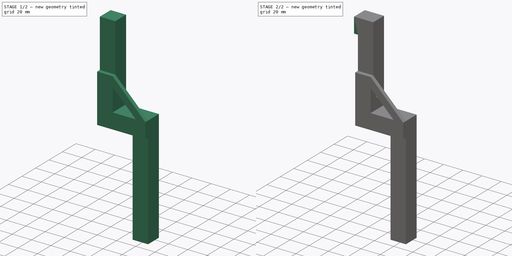
[diagram: build sequence overview — one tinted view per stage of 2, left to right]
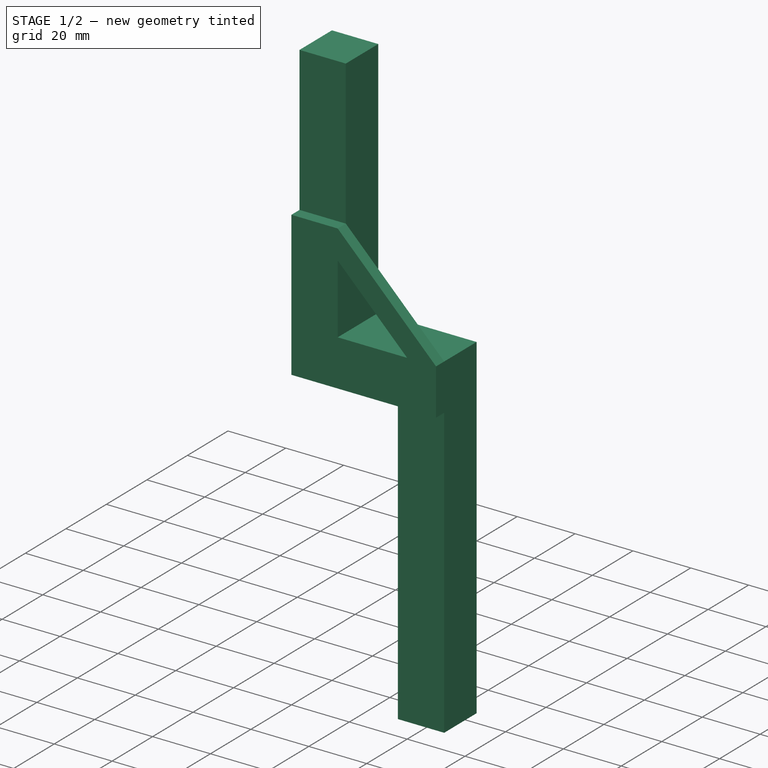
[diagram: stage 1 of 2 — iso view after this stage's code; geometry added in this stage tinted green]
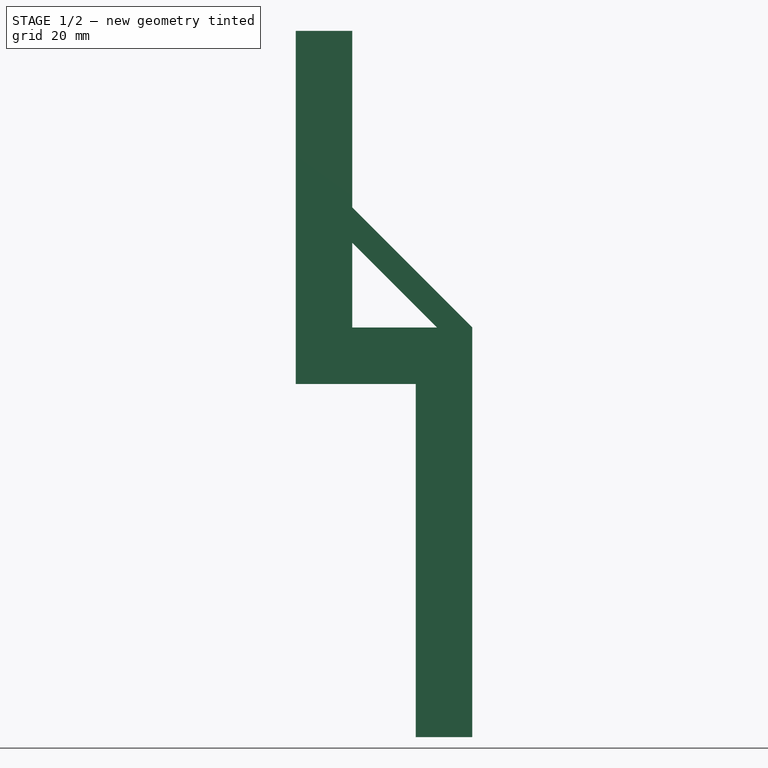
[diagram: stage 1 of 2 — front view after this stage's code; geometry added in this stage tinted green]
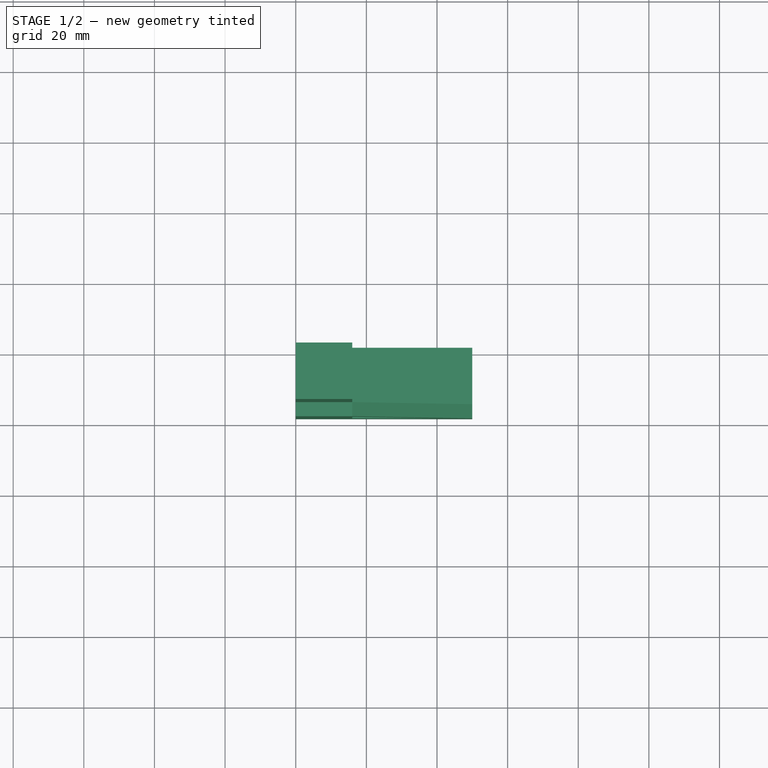
[diagram: stage 1 of 2 — top view after this stage's code; geometry added in this stage tinted green]
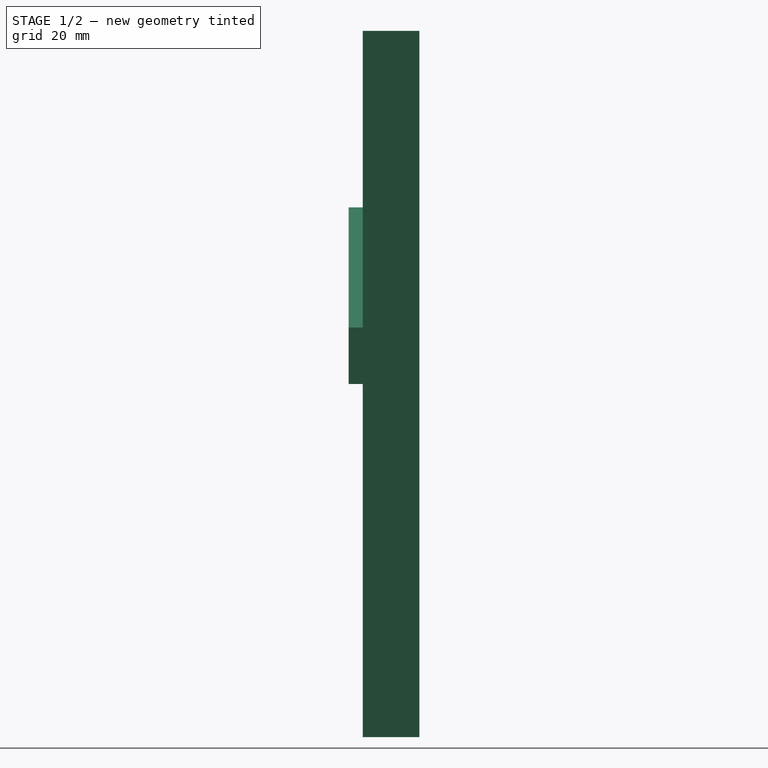
[diagram: stage 1 of 2 — right view after this stage's code; geometry added in this stage tinted green]
FCSTD DOCUMENT  (FreeCAD 1.0R39285 (Git))
Label: Supporting-Clamp
License: All rights reserved
objects: Sketcher::SketchObject×4, PartDesign::Pad×3, PartDesign::Pocket×1, PartDesign::Body×1
note: 21 computed .brp shape members not serialized (recipe doc carries the construction recipe); baked Part::Feature solids carry a one-line shape summary decoded from their .brp

FEATURE [Sketcher::SketchObject] Sketch
  ArcFitTolerance = 1e-06
  AttachmentSupport = -> [XZ_Plane]
  FullyConstrained = true
  MakeInternals = false
  MapMode = 5
  Placement = pos=(0,0,0) rot=(1,0,0;1.5708rad)
  sketch-geometry (8):
    g0: LineSegment StartX=0 StartY=0 StartZ=0 EndX=0 EndY=100 EndZ=0
    g1: LineSegment StartX=0 StartY=100 StartZ=0 EndX=16 EndY=100 EndZ=0
    g2: LineSegment StartX=16 StartY=100 StartZ=0 EndX=16 EndY=16 EndZ=0
    g3: LineSegment StartX=16 StartY=16 StartZ=0 EndX=50 EndY=16 EndZ=0
    g4: LineSegment StartX=50 StartY=16 StartZ=0 EndX=50 EndY=-100 EndZ=0
    g5: LineSegment StartX=50 StartY=-100 StartZ=0 EndX=34 EndY=-100 EndZ=0
    g6: LineSegment StartX=34 StartY=-100 StartZ=0 EndX=34 EndY=0 EndZ=0
    g7: LineSegment StartX=34 StartY=0 StartZ=0 EndX=0 EndY=0 EndZ=0
  constraints (23):
    c: Distance(g0) = 100
    c: Coincident(g0,g-1)
    c: PointOnObject(g0,g-2)
    c: Distance(g1) = 16
    c: Coincident(g1,g0)
    c: Horizontal(g1)
    c: Distance(g2) = 84
    c: Coincident(g2,g1)
    c: Vertical(g2)
    c: Distance(g3) = 34
    c: Coincident(g3,g2)
    c: Horizontal(g3)
    c: Distance(g4) = 116
    c: Coincident(g4,g3)
    c: Vertical(g4)
    c: Distance(g5) = 16
    c: Coincident(g5,g4)
    c: Horizontal(g5)
    c: Coincident(g6,g5)
    c: PointOnObject(g6,g-1)
    c: Vertical(g6)
    c: Coincident(g7,g6)
    c: Coincident(g7,g0)
FEATURE [PartDesign::Pad] Pad
  Direction = (0,-1,2e-16)
  Length = 16
  Length2 = 10
  Placement = pos=(0,0,0) rot=(1,0,0;1.5708rad)
  Profile = -> Sketch
  ReferenceAxis = -> Sketch [N_Axis]
  Refine = true
  Suppressed = false
  Type = 0
FEATURE [Sketcher::SketchObject] Sketch001
  ArcFitTolerance = 1e-06
  AttachmentSupport = -> [Pad]
  FullyConstrained = true
  MakeInternals = false
  MapMode = 5
  Placement = pos=(0,-16,3.6e-15) rot=(1,0,0;1.5708rad)
  sketch-geometry (9):
    g0: LineSegment StartX=0 StartY=0 StartZ=0 EndX=50 EndY=0 EndZ=0
    g1: LineSegment StartX=50 StartY=0 StartZ=0 EndX=50 EndY=16 EndZ=0
    g2: LineSegment StartX=0 StartY=0 StartZ=0 EndX=0 EndY=50 EndZ=0
    g3: LineSegment StartX=0 StartY=50 StartZ=0 EndX=16 EndY=50 EndZ=0
    g4: LineSegment StartX=16 StartY=50 StartZ=0 EndX=50 EndY=16 EndZ=0
    g5: LineSegment [constr] StartX=16 StartY=50 StartZ=0 EndX=16 EndY=16 EndZ=0
    g6: LineSegment StartX=16 StartY=16 StartZ=0 EndX=40 EndY=16 EndZ=0
    g7: LineSegment StartX=40 StartY=16 StartZ=0 EndX=16 EndY=40 EndZ=0
    g8: LineSegment StartX=16 StartY=40 StartZ=0 EndX=16 EndY=16 EndZ=0
  constraints (25):
    c: Distance(g0) = 50
    c: Coincident(g0,g-1)
    c: PointOnObject(g0,g-1)
    c: Distance(g1) = 16
    c: Coincident(g1,g0)
    c: Vertical(g1)
    c: Distance(g2) = 50
    c: Coincident(g2,g0)
    c: PointOnObject(g2,g-2)
    c: Distance(g3) = 16
    c: Coincident(g3,g2)
    c: Horizontal(g3)
    c: Coincident(g4,g3)
    c: Coincident(g4,g1)
    c: Distance(g5) = 34
    c: Coincident(g5,g3)
    c: Vertical(g5)
    c: Distance(g6) = 24
    c: Coincident(g6,g5)
    c: Horizontal(g6)
    c: Coincident(g7,g6)
    c: Parallel(g4,g7)
    c: PointOnObject(g7,g5)
    c: Coincident(g8,g7)
    c: Coincident(g8,g5)
FEATURE [PartDesign::Pad] Pad001
  BaseFeature = -> Pad
  Direction = (0,-1,2e-16)
  Length = 4
  Length2 = 10
  Placement = pos=(0,0,0) rot=(1,0,0;1.5708rad)
  Profile = -> Sketch001
  ReferenceAxis = -> Sketch001 [N_Axis]
  Refine = true
  Suppressed = false
  Type = 0
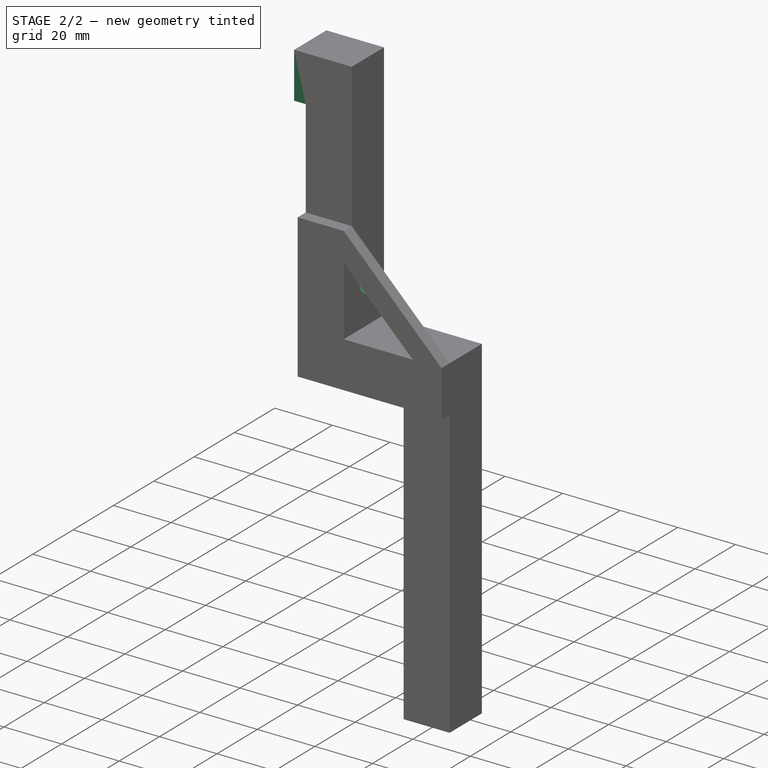
[diagram: stage 2 of 2 — iso view after this stage's code; geometry added in this stage tinted green]
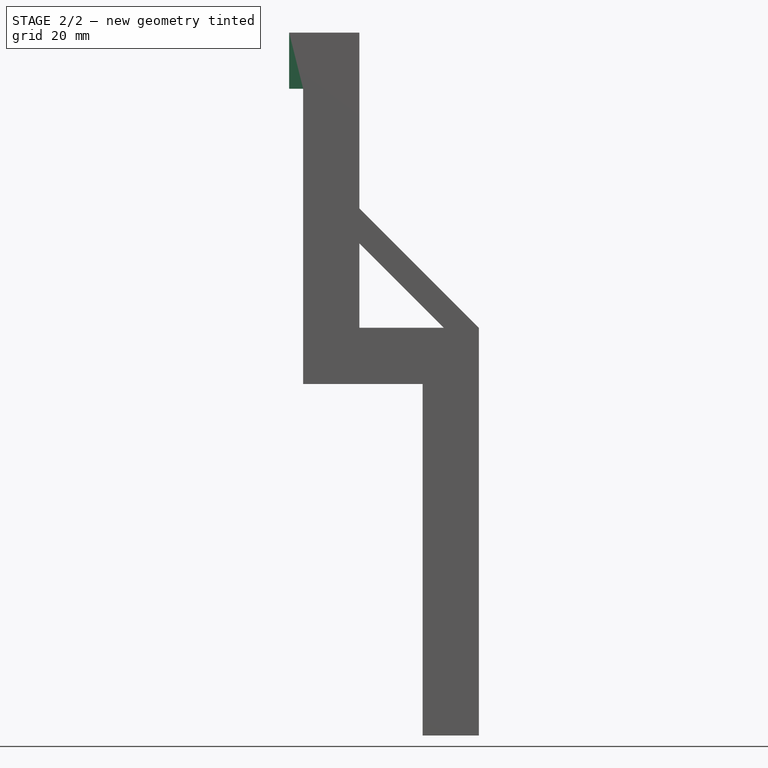
[diagram: stage 2 of 2 — front view after this stage's code; geometry added in this stage tinted green]
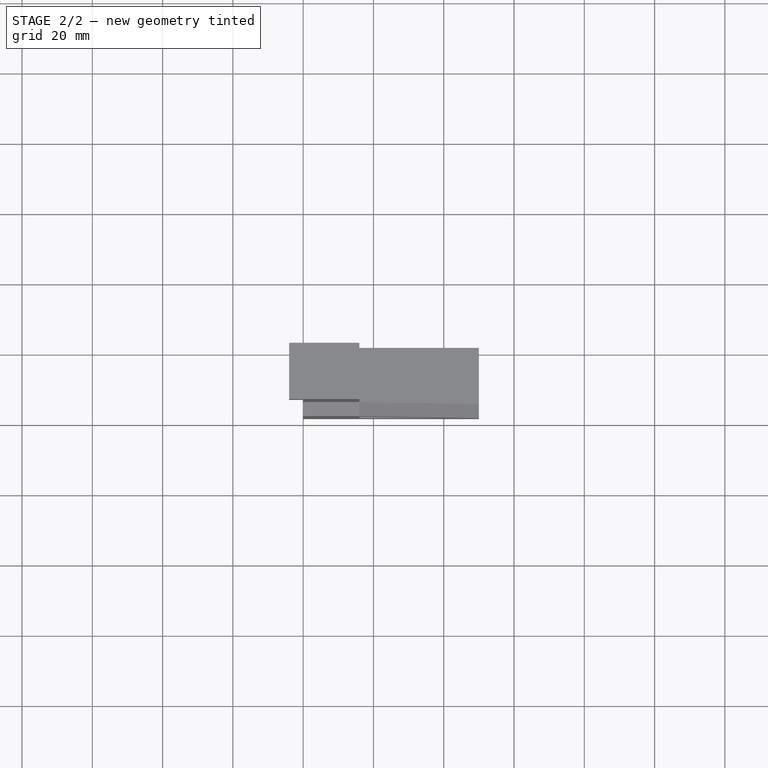
[diagram: stage 2 of 2 — top view after this stage's code; geometry added in this stage tinted green]
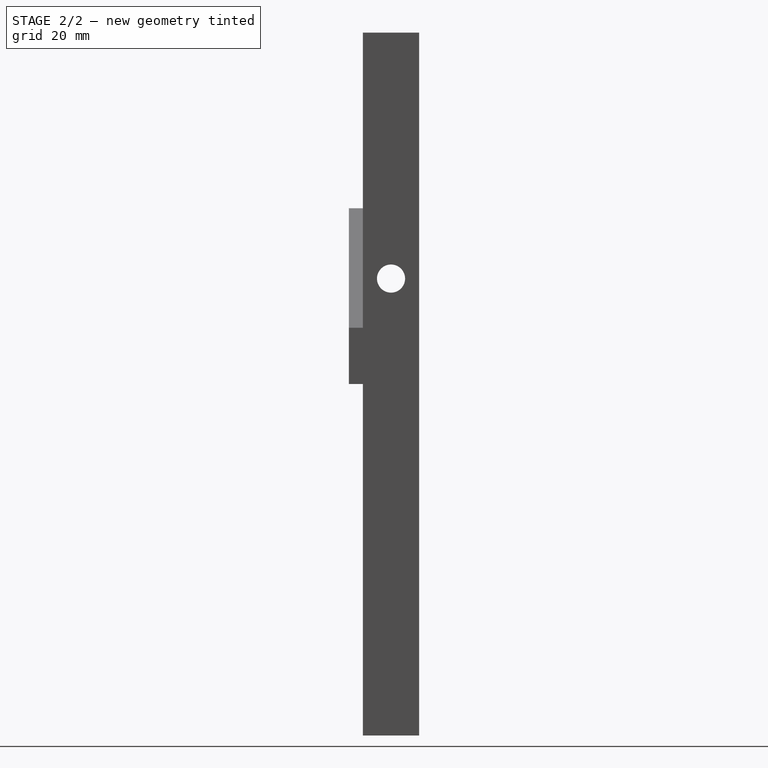
[diagram: stage 2 of 2 — right view after this stage's code; geometry added in this stage tinted green]
FEATURE [Sketcher::SketchObject] Sketch002
  ArcFitTolerance = 1e-06
  AttachmentSupport = -> [Pad001]
  FullyConstrained = true
  MakeInternals = false
  MapMode = 5
  Placement = pos=(16,0,0) rot=(0.707107,0,0.707107;3.14159rad)
  sketch-geometry (3):
    g0: LineSegment [constr] StartX=0 StartY=0 StartZ=0 EndX=0 EndY=8 EndZ=0
    g1: LineSegment [constr] StartX=0 StartY=8 StartZ=0 EndX=30 EndY=8 EndZ=0
    g2: Circle CenterX=30 CenterY=8 CenterZ=0 NormalX=0 NormalY=0 NormalZ=1 AngleXU=0 Radius=4
  constraints (8):
    c: Distance(g0) = 8
    c: Coincident(g0,g-1)
    c: PointOnObject(g0,g-2)
    c: Distance(g1) = 30
    c: Coincident(g1,g0)
    c: Horizontal(g1)
    c: Diameter(g2) = 8
    c: Coincident(g2,g1)
FEATURE [PartDesign::Pocket] Pocket
  BaseFeature = -> Pad001
  Direction = (-1,0,2e-16)
  Length = 5
  Length2 = 5
  Placement = pos=(0,0,0) rot=(1,0,0;1.5708rad)
  Profile = -> Sketch002
  ReferenceAxis = -> Sketch002 [N_Axis]
  Refine = true
  Suppressed = false
  Type = 1
FEATURE [Sketcher::SketchObject] Sketch003
  ArcFitTolerance = 1e-06
  AttachmentSupport = -> [Pocket]
  FullyConstrained = true
  MakeInternals = false
  MapMode = 5
  Placement = pos=(0,0,0) rot=(0.707107,0,-0.707107;3.14159rad)
  sketch-geometry (5):
    g0: LineSegment [constr] StartX=0 StartY=0 StartZ=0 EndX=-84 EndY=0 EndZ=0
    g1: LineSegment StartX=-84 StartY=0 StartZ=0 EndX=-84 EndY=16 EndZ=0
    g2: LineSegment StartX=-84 StartY=16 StartZ=0 EndX=-100 EndY=16 EndZ=0
    g3: LineSegment StartX=-100 StartY=16 StartZ=0 EndX=-100 EndY=0 EndZ=0
    g4: LineSegment StartX=-100 StartY=0 StartZ=0 EndX=-84 EndY=0 EndZ=0
  constraints (14):
    c: Distance(g0) = 84
    c: Coincident(g0,g-1)
    c: Horizontal(g0)
    c: Coincident(g1,g2)
    c: Coincident(g2,g3)
    c: Coincident(g3,g4)
    c: Coincident(g4,g1)
    c: Vertical(g1)
    c: Vertical(g3)
    c: Horizontal(g2)
    c: Horizontal(g4)
    c: Distance(g1,g3) = 16
    c: Distance(g2,g4) = 16
    c: Coincident(g1,g0)
FEATURE [PartDesign::Pad] Pad002
  BaseFeature = -> Pocket
  Direction = (-1,0,-2e-16)
  Length = 4
  Length2 = 10
  Placement = pos=(0,0,0) rot=(1,0,0;1.5708rad)
  Profile = -> Sketch003
  ReferenceAxis = -> Sketch003 [N_Axis]
  Refine = true
  Suppressed = false
  Type = 0
FEATURE [PartDesign::Body] Body
  AllowCompound = false
  Group = -> [Sketch,Pad,Sketch001,Pad001,Sketch002,Pocket,Sketch003,Pad002]
  Origin = -> Origin
  Tip = -> Pad002
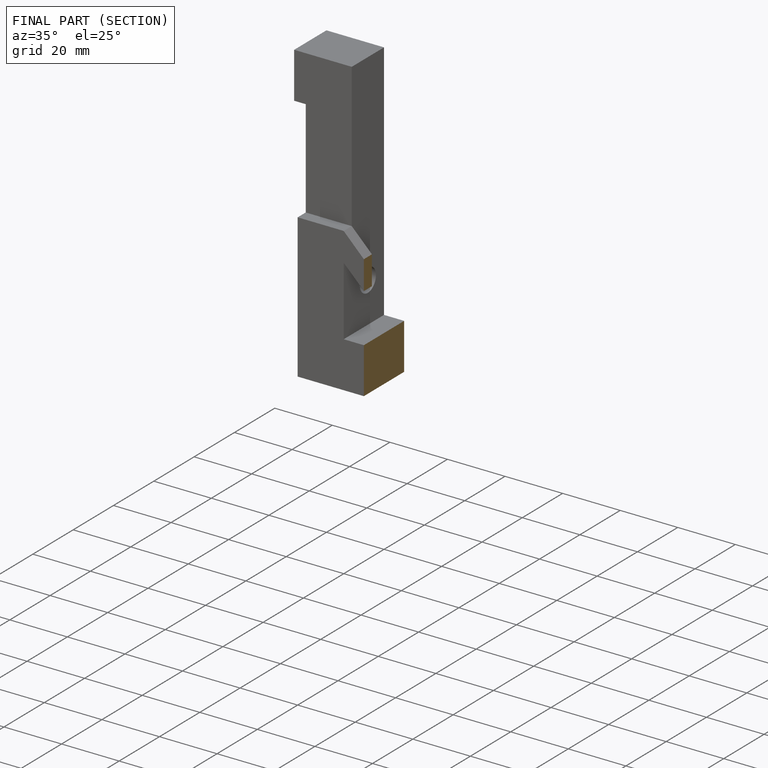
[diagram: finished part — half-section view (interior)]
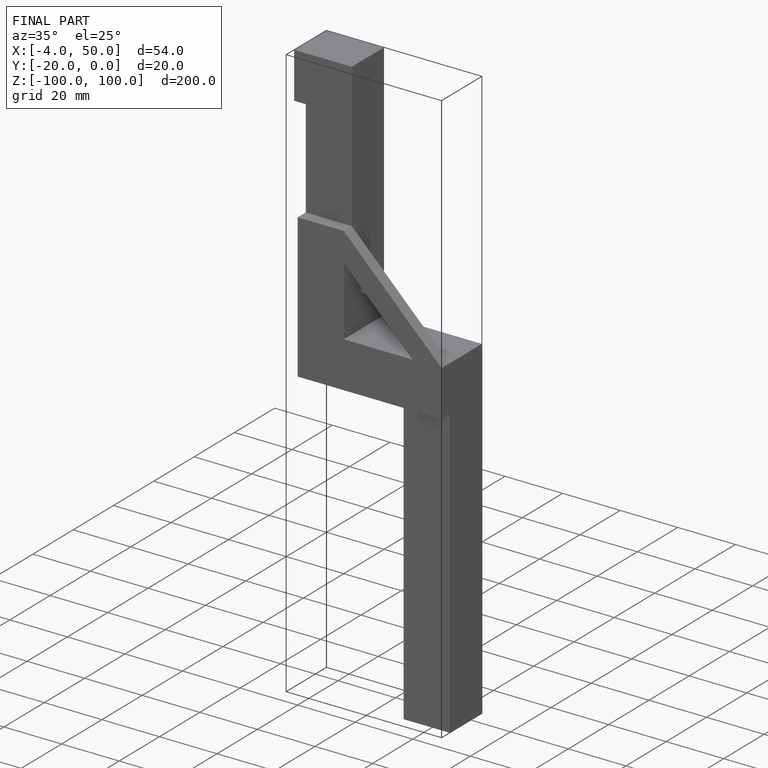
[diagram: finished part — iso view with bounding-box wireframe]
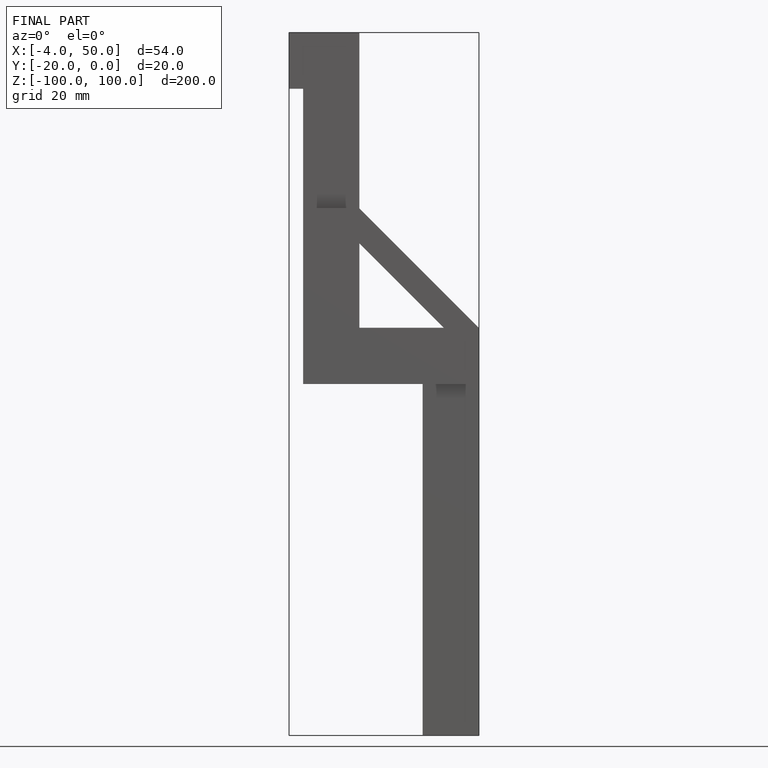
[diagram: finished part — front view with bounding-box wireframe]
